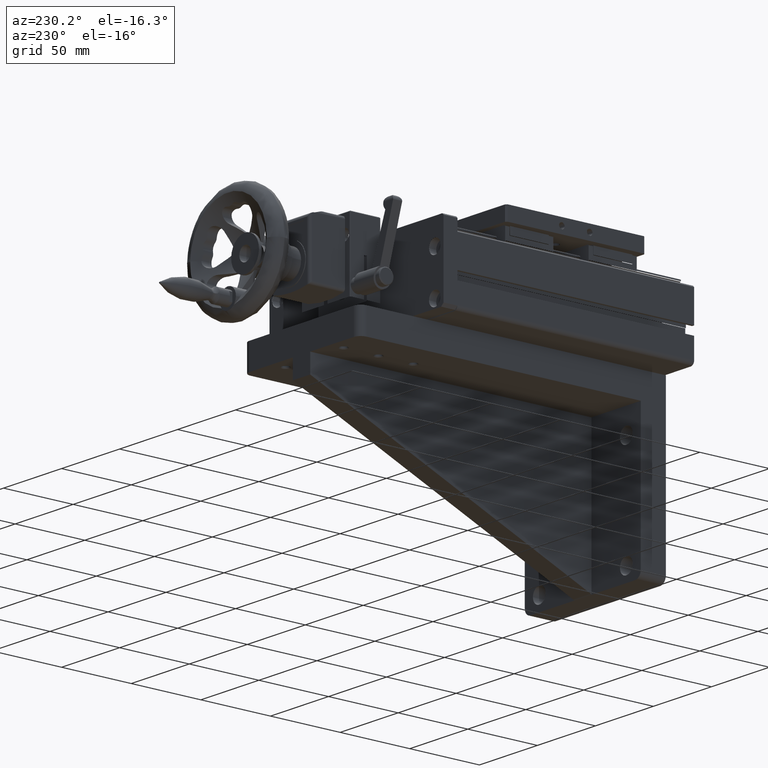
[diagram: clean part render]
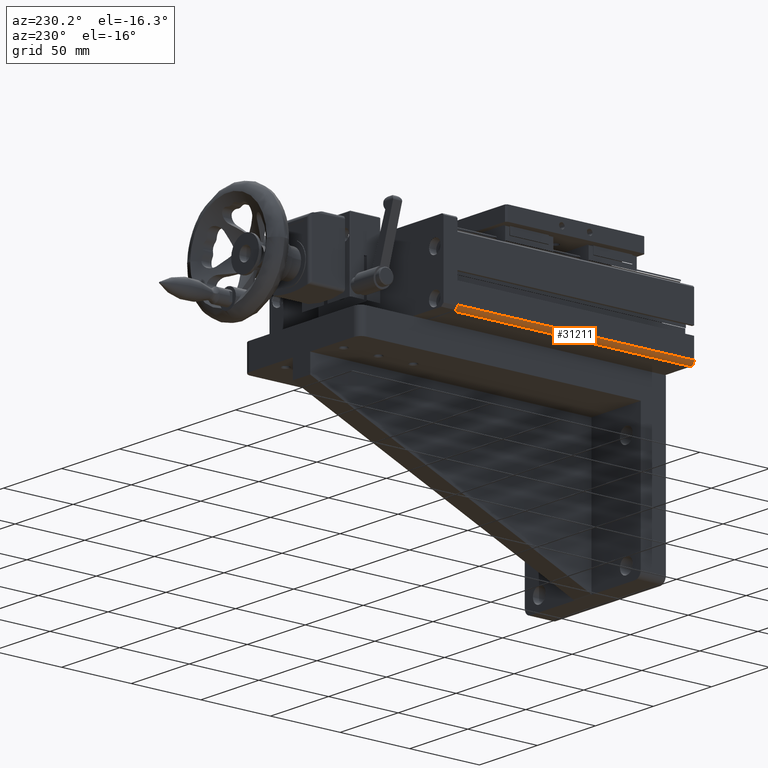
[diagram: same view with one face highlighted and labeled with its STEP entity id]
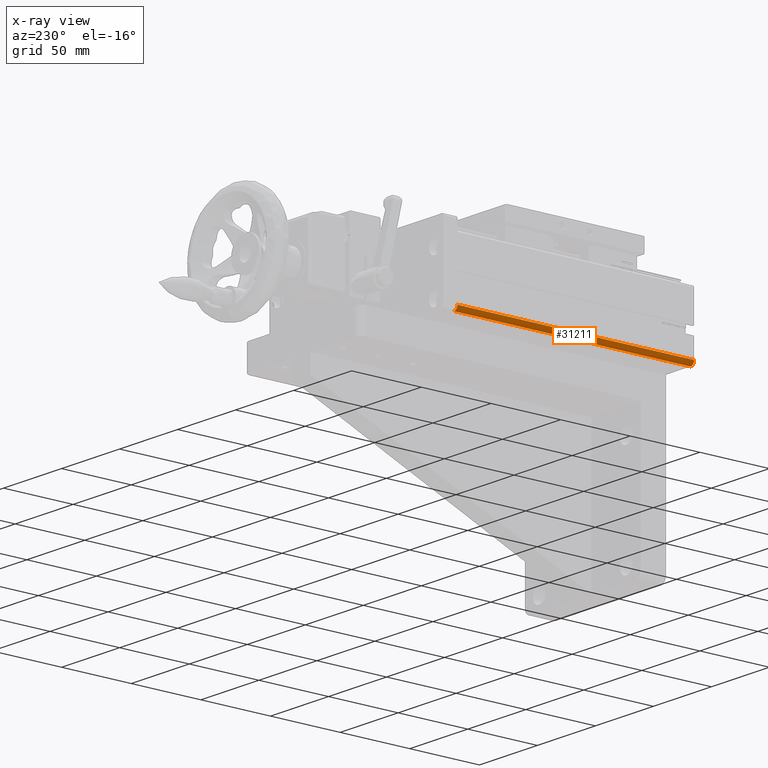
[diagram: x-ray of the same camera — body ghosted, the highlighted face saturated]
A machine part, auxiliary view. The second image highlights one B-rep face of the part: STEP entity #31211.
The next image is the same camera in x-ray: the body ghosted, the highlighted face saturated — about 0% of this face is hidden behind the body in this view.
In plain terms, the highlighted cylindrical surface (edge-blend (fillet) strip) has radius 3 mm, axis along (-0, -1, 0).
Its self-contained STEP definition (entity closure, byte-faithful):
#2544 = AXIS2_PLACEMENT_3D ( 'NONE', #22987, #25504, #4772 ) ;
#4259 = EDGE_LOOP ( 'NONE', ( #29928, #11510, #23471, #23149 ) ) ;
#4772 = DIRECTION ( 'NONE',  ( 9.251858538542792362E-15, 0.000000000000000000, 1.000000000000000000 ) ) ;
#5222 = VECTOR ( 'NONE', #24207, 1000.000000000000000 ) ;
#5548 = CARTESIAN_POINT ( 'NONE',  ( -98.07974840947780137, -114.2134697455980188, 63.00000000000061107 ) ) ;
#6082 = VECTOR ( 'NONE', #27290, 1000.000000000000000 ) ;
#7202 = VERTEX_POINT ( 'NONE', #18556 ) ;
#10471 = DIRECTION ( 'NONE',  ( 9.251858538542792362E-15, 0.000000000000000000, 1.000000000000000000 ) ) ;
#11276 = VERTEX_POINT ( 'NONE', #23144 ) ;
#11387 = CIRCLE ( 'NONE', #30227, 3.000000000000058176 ) ;
#11510 = ORIENTED_EDGE ( 'NONE', *, *, #24275, .F. ) ;
#13853 = CARTESIAN_POINT ( 'NONE',  ( -98.07974840947780137, 55.78653025440200253, 63.00000000000061107 ) ) ;
#13918 = CARTESIAN_POINT ( 'NONE',  ( -95.07974840947724715, 55.78653025440200253, 60.00000000000049738 ) ) ;
#15471 = EDGE_CURVE ( 'NONE', #22771, #11276, #16471, .T. ) ;
#15584 = DIRECTION ( 'NONE',  ( -1.053011137364023571E-16, -1.000000000000000000, 3.821117613674764034E-17 ) ) ;
#16404 = LINE ( 'NONE', #13853, #5222 ) ;
#16471 = LINE ( 'NONE', #13918, #6082 ) ;
#17891 = VERTEX_POINT ( 'NONE', #5548 ) ;
#17900 = DIRECTION ( 'NONE',  ( -1.053011137364023571E-16, -1.000000000000000000, 3.821117613674764034E-17 ) ) ;
#18150 = CARTESIAN_POINT ( 'NONE',  ( -95.07974840947768769, -114.2134697455980188, 63.00000000000061107 ) ) ;
#18556 = CARTESIAN_POINT ( 'NONE',  ( -98.07974840947780137, 55.78653025440200253, 63.00000000000061107 ) ) ;
#20160 = DIRECTION ( 'NONE',  ( 9.251858538542792362E-15, 0.000000000000000000, 1.000000000000000000 ) ) ;
#20577 = FACE_OUTER_BOUND ( 'NONE', #4259, .T. ) ;
#22771 = VERTEX_POINT ( 'NONE', #31659 ) ;
#22987 = CARTESIAN_POINT ( 'NONE',  ( -95.07974840947768769, 55.78653025440200253, 63.00000000000061107 ) ) ;
#23144 = CARTESIAN_POINT ( 'NONE',  ( -95.07974840947724715, -114.2134697455980188, 60.00000000000049738 ) ) ;
#23149 = ORIENTED_EDGE ( 'NONE', *, *, #15471, .T. ) ;
#23471 = ORIENTED_EDGE ( 'NONE', *, *, #24471, .T. ) ;
#23476 = CYLINDRICAL_SURFACE ( 'NONE', #27728, 3.000000000000058176 ) ;
#24207 = DIRECTION ( 'NONE',  ( -1.053011137364023571E-16, -1.000000000000000000, 3.821117613674764034E-17 ) ) ;
#24275 = EDGE_CURVE ( 'NONE', #7202, #17891, #16404, .T. ) ;
#24471 = EDGE_CURVE ( 'NONE', #7202, #22771, #31049, .T. ) ;
#25504 = DIRECTION ( 'NONE',  ( -1.053011137364023571E-16, -1.000000000000000000, 3.821117613674764034E-17 ) ) ;
#27290 = DIRECTION ( 'NONE',  ( -1.053011137364023571E-16, -1.000000000000000000, 3.821117613674764034E-17 ) ) ;
#27728 = AXIS2_PLACEMENT_3D ( 'NONE', #28043, #17900, #10471 ) ;
#28043 = CARTESIAN_POINT ( 'NONE',  ( -95.07974840947768769, 55.78653025440200253, 63.00000000000061107 ) ) ;
#28092 = EDGE_CURVE ( 'NONE', #17891, #11276, #11387, .T. ) ;
#29928 = ORIENTED_EDGE ( 'NONE', *, *, #28092, .F. ) ;
#30227 = AXIS2_PLACEMENT_3D ( 'NONE', #18150, #15584, #20160 ) ;
#31049 = CIRCLE ( 'NONE', #2544, 3.000000000000058176 ) ;
#31211 = ADVANCED_FACE ( 'NONE', ( #20577 ), #23476, .T. ) ;
#31659 = CARTESIAN_POINT ( 'NONE',  ( -95.07974840947724715, 55.78653025440200253, 60.00000000000049738 ) ) ;